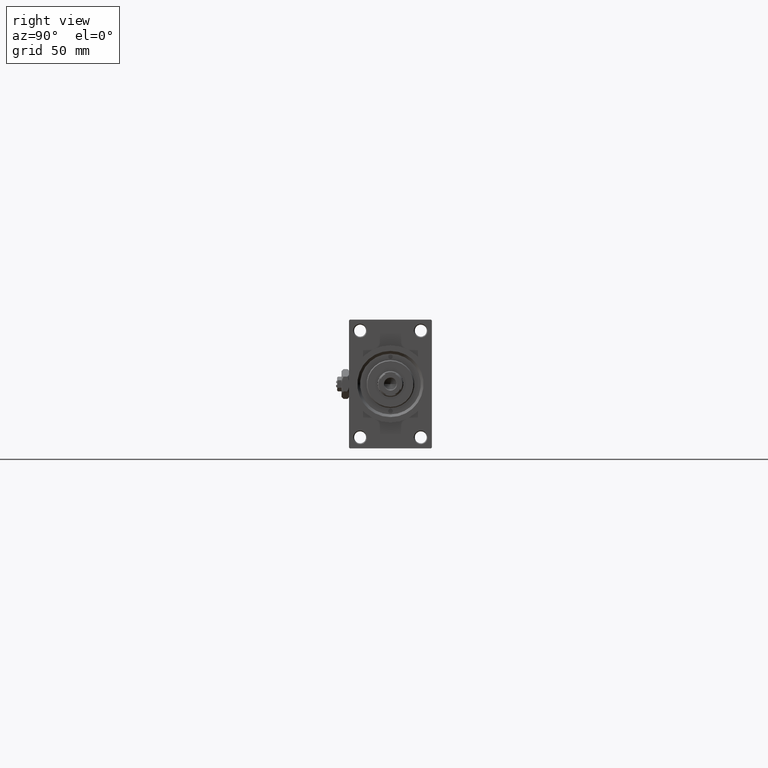
[diagram: clean part render]
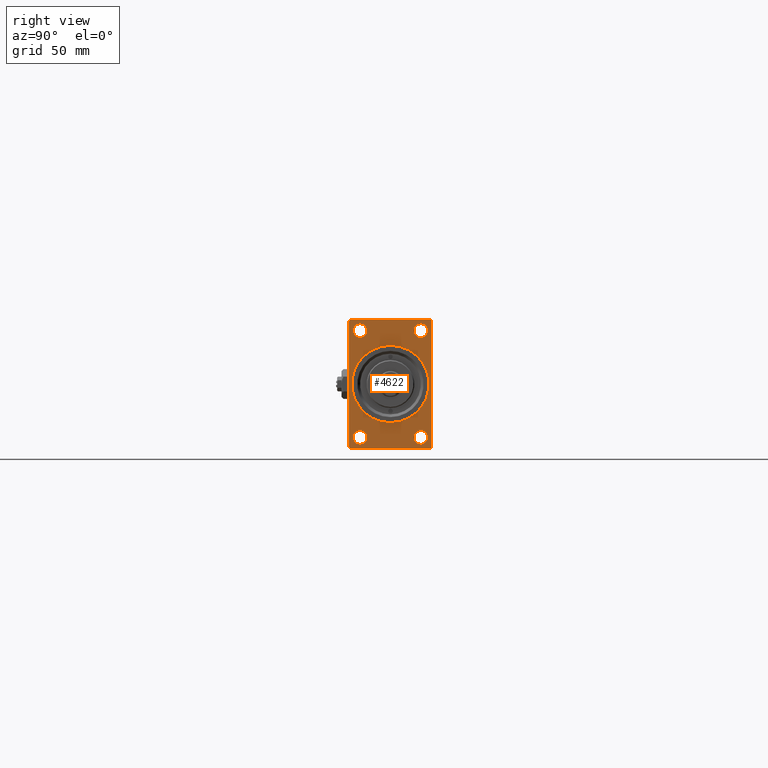
[diagram: same view with one face highlighted and labeled with its STEP entity id]
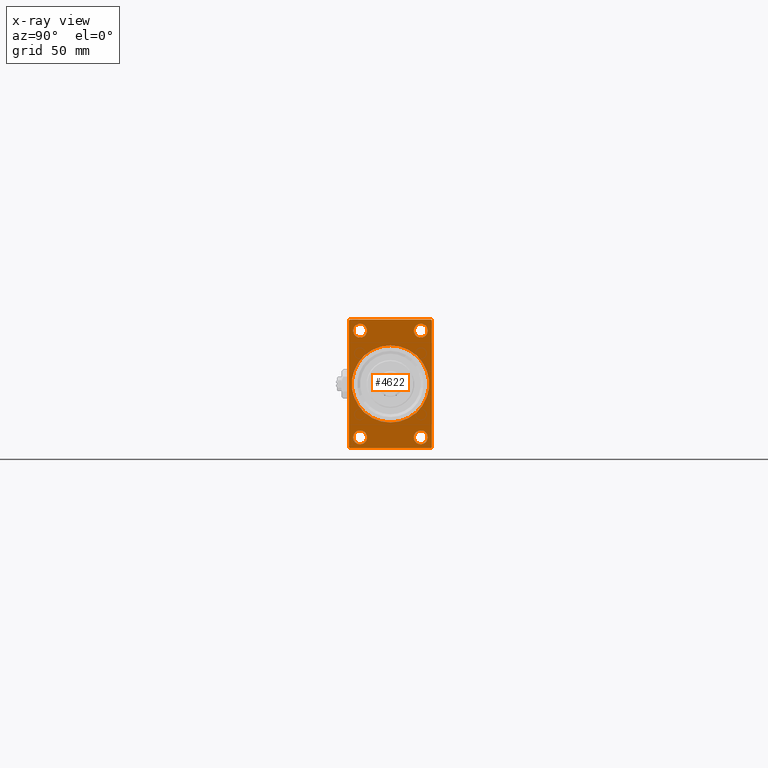
[diagram: x-ray of the same camera — body ghosted, the highlighted face saturated]
A machine part, right view. The second image highlights one B-rep face of the part: STEP entity #4622.
The next image is the same camera in x-ray: the body ghosted, the highlighted face saturated — about 0% of this face is hidden behind the body in this view.
In plain terms, the highlighted planar face has unit normal (-1, 0, 0).
Its self-contained STEP definition (entity closure, byte-faithful):
#205 = VERTEX_POINT ( 'NONE', #8558 ) ;
#581 = FACE_BOUND ( 'NONE', #11383, .T. ) ;
#661 = CARTESIAN_POINT ( 'NONE',  ( 343.0000000000000000, 22.49999999999999645, -34.49999999999995026 ) ) ;
#721 = DIRECTION ( 'NONE',  ( 0.000000000000000000, 0.7071067811865474617, -0.7071067811865474617 ) ) ;
#827 = FACE_BOUND ( 'NONE', #24219, .T. ) ;
#882 = EDGE_CURVE ( 'NONE', #205, #5379, #10425, .T. ) ;
#908 = LINE ( 'NONE', #661, #13055 ) ;
#1188 = AXIS2_PLACEMENT_3D ( 'NONE', #44933, #44183, #36693 ) ;
#1335 = DIRECTION ( 'NONE',  ( 0.000000000000000000, -1.000000000000000000, 0.000000000000000000 ) ) ;
#1448 = VERTEX_POINT ( 'NONE', #9154 ) ;
#1663 = DIRECTION ( 'NONE',  ( 0.000000000000000000, 0.000000000000000000, 1.000000000000000000 ) ) ;
#1673 = CARTESIAN_POINT ( 'NONE',  ( 343.0000000000000000, -16.50000000000000000, -28.99999999999999289 ) ) ;
#1816 = AXIS2_PLACEMENT_3D ( 'NONE', #16022, #41953, #7796 ) ;
#2167 = ORIENTED_EDGE ( 'NONE', *, *, #40682, .T. ) ;
#3572 = VECTOR ( 'NONE', #1335, 1000.000000000000000 ) ;
#4204 = CARTESIAN_POINT ( 'NONE',  ( 343.0000000000000000, -22.00000000000000355, -35.00000000000000000 ) ) ;
#4228 = ORIENTED_EDGE ( 'NONE', *, *, #22083, .T. ) ;
#4308 = CARTESIAN_POINT ( 'NONE',  ( 343.0000000000000000, -22.50000000000000355, 34.49999999999995026 ) ) ;
#4450 = AXIS2_PLACEMENT_3D ( 'NONE', #19543, #31243, #12309 ) ;
#4532 = DIRECTION ( 'NONE',  ( -1.000000000000000000, -0.000000000000000000, -0.000000000000000000 ) ) ;
#4622 = ADVANCED_FACE ( 'NONE', ( #581, #827, #11777, #19508, #46438, #8038 ), #15773, .F. ) ;
#5064 = LINE ( 'NONE', #8065, #3572 ) ;
#5161 = CARTESIAN_POINT ( 'NONE',  ( 343.0000000000000000, -16.50000000000000000, -28.99999999999999289 ) ) ;
#5379 = VERTEX_POINT ( 'NONE', #21785 ) ;
#5805 = EDGE_CURVE ( 'NONE', #42049, #1448, #14490, .T. ) ;
#6171 = CIRCLE ( 'NONE', #11744, 21.00000000000000000 ) ;
#6242 = CIRCLE ( 'NONE', #30919, 3.750000000000027534 ) ;
#6644 = VERTEX_POINT ( 'NONE', #34284 ) ;
#7150 = VERTEX_POINT ( 'NONE', #21047 ) ;
#7334 = CARTESIAN_POINT ( 'NONE',  ( 343.0000000000000000, -22.50000000000000355, 34.49999999999995026 ) ) ;
#7465 = DIRECTION ( 'NONE',  ( 0.000000000000000000, 0.000000000000000000, -1.000000000000000000 ) ) ;
#7585 = AXIS2_PLACEMENT_3D ( 'NONE', #39927, #46941, #35702 ) ;
#7796 = DIRECTION ( 'NONE',  ( -0.000000000000000000, 0.000000000000000000, 1.000000000000000000 ) ) ;
#8038 = FACE_OUTER_BOUND ( 'NONE', #32968, .T. ) ;
#8065 = CARTESIAN_POINT ( 'NONE',  ( 343.0000000000000000, 22.49999999999999645, 35.00000000000000000 ) ) ;
#8272 = CARTESIAN_POINT ( 'NONE',  ( 343.0000000000000000, -16.50000000000000000, -32.75000000000002842 ) ) ;
#8557 = EDGE_CURVE ( 'NONE', #33323, #7150, #36974, .T. ) ;
#8558 = CARTESIAN_POINT ( 'NONE',  ( 343.0000000000000000, -16.50000000000000000, 25.24999999999998224 ) ) ;
#8746 = DIRECTION ( 'NONE',  ( 0.000000000000000000, 0.000000000000000000, 1.000000000000000000 ) ) ;
#8893 = AXIS2_PLACEMENT_3D ( 'NONE', #17619, #44552, #40300 ) ;
#9154 = CARTESIAN_POINT ( 'NONE',  ( 343.0000000000000000, 21.99999999999999645, 35.00000000000000000 ) ) ;
#9462 = CARTESIAN_POINT ( 'NONE',  ( 343.0000000000000000, 22.49999999999999645, 35.00000000000000000 ) ) ;
#10006 = DIRECTION ( 'NONE',  ( 0.000000000000000000, -1.000000000000000000, 0.000000000000000000 ) ) ;
#10068 = EDGE_CURVE ( 'NONE', #7150, #33323, #30663, .T. ) ;
#10206 = ORIENTED_EDGE ( 'NONE', *, *, #25471, .T. ) ;
#10425 = CIRCLE ( 'NONE', #43871, 3.750000000000027534 ) ;
#10766 = EDGE_CURVE ( 'NONE', #46947, #25551, #908, .T. ) ;
#11151 = CARTESIAN_POINT ( 'NONE',  ( 343.0000000000000000, 2.571758278209441661E-15, -21.00000000000000000 ) ) ;
#11383 = EDGE_LOOP ( 'NONE', ( #35289, #41906 ) ) ;
#11744 = AXIS2_PLACEMENT_3D ( 'NONE', #45656, #19700, #26679 ) ;
#11777 = FACE_BOUND ( 'NONE', #44870, .T. ) ;
#12309 = DIRECTION ( 'NONE',  ( 0.000000000000000000, 0.000000000000000000, 1.000000000000000000 ) ) ;
#12876 = ORIENTED_EDGE ( 'NONE', *, *, #43783, .T. ) ;
#13055 = VECTOR ( 'NONE', #15858, 1000.000000000000114 ) ;
#13575 = ORIENTED_EDGE ( 'NONE', *, *, #24412, .T. ) ;
#13661 = VERTEX_POINT ( 'NONE', #34315 ) ;
#14128 = VERTEX_POINT ( 'NONE', #28991 ) ;
#14249 = CARTESIAN_POINT ( 'NONE',  ( 343.0000000000000000, 22.49999999999999645, -35.00000000000000000 ) ) ;
#14326 = VERTEX_POINT ( 'NONE', #8272 ) ;
#14490 = LINE ( 'NONE', #17982, #32909 ) ;
#14808 = LINE ( 'NONE', #7334, #39646 ) ;
#15247 = VERTEX_POINT ( 'NONE', #4308 ) ;
#15493 = ORIENTED_EDGE ( 'NONE', *, *, #18968, .F. ) ;
#15773 = PLANE ( 'NONE',  #1816 ) ;
#15858 = DIRECTION ( 'NONE',  ( -0.000000000000000000, 0.7071067811865474617, 0.7071067811865474617 ) ) ;
#16022 = CARTESIAN_POINT ( 'NONE',  ( 343.0000000000000000, 0.000000000000000000, 0.000000000000000000 ) ) ;
#16066 = DIRECTION ( 'NONE',  ( 0.000000000000000000, 0.000000000000000000, 1.000000000000000000 ) ) ;
#16947 = EDGE_CURVE ( 'NONE', #6644, #15247, #14808, .T. ) ;
#17619 = CARTESIAN_POINT ( 'NONE',  ( 343.0000000000000000, 16.50000000000000000, -28.99999999999999289 ) ) ;
#17757 = AXIS2_PLACEMENT_3D ( 'NONE', #22663, #42349, #7465 ) ;
#17982 = CARTESIAN_POINT ( 'NONE',  ( 343.0000000000000000, 21.99999999999999645, 35.00000000000000000 ) ) ;
#18367 = CARTESIAN_POINT ( 'NONE',  ( 343.0000000000000000, 16.50000000000000000, 25.24999999999997513 ) ) ;
#18451 = VERTEX_POINT ( 'NONE', #33266 ) ;
#18912 = ORIENTED_EDGE ( 'NONE', *, *, #29737, .F. ) ;
#18968 = EDGE_CURVE ( 'NONE', #42049, #25551, #20698, .T. ) ;
#19420 = VERTEX_POINT ( 'NONE', #11151 ) ;
#19508 = FACE_BOUND ( 'NONE', #29573, .T. ) ;
#19543 = CARTESIAN_POINT ( 'NONE',  ( 343.0000000000000000, 16.50000000000000000, -28.99999999999999289 ) ) ;
#19566 = CIRCLE ( 'NONE', #4450, 3.750000000000034639 ) ;
#19700 = DIRECTION ( 'NONE',  ( 1.000000000000000000, 0.000000000000000000, 0.000000000000000000 ) ) ;
#20308 = ORIENTED_EDGE ( 'NONE', *, *, #31066, .F. ) ;
#20698 = LINE ( 'NONE', #9462, #25402 ) ;
#21047 = CARTESIAN_POINT ( 'NONE',  ( 343.0000000000000000, 16.50000000000000000, 32.75000000000003553 ) ) ;
#21647 = VECTOR ( 'NONE', #29916, 1000.000000000000000 ) ;
#21652 = CIRCLE ( 'NONE', #8893, 3.750000000000034639 ) ;
#21696 = LINE ( 'NONE', #36898, #21647 ) ;
#21785 = CARTESIAN_POINT ( 'NONE',  ( 343.0000000000000000, -16.50000000000000000, 32.75000000000003553 ) ) ;
#22083 = EDGE_CURVE ( 'NONE', #14326, #14128, #31099, .T. ) ;
#22377 = CARTESIAN_POINT ( 'NONE',  ( 343.0000000000000000, -21.99999999999998934, -35.00000000000000000 ) ) ;
#22663 = CARTESIAN_POINT ( 'NONE',  ( 343.0000000000000000, 0.000000000000000000, 0.000000000000000000 ) ) ;
#23672 = VECTOR ( 'NONE', #721, 1000.000000000000114 ) ;
#24219 = EDGE_LOOP ( 'NONE', ( #4228, #13575 ) ) ;
#24412 = EDGE_CURVE ( 'NONE', #14128, #14326, #25579, .T. ) ;
#25402 = VECTOR ( 'NONE', #28659, 1000.000000000000000 ) ;
#25471 = EDGE_CURVE ( 'NONE', #35588, #13661, #21652, .T. ) ;
#25551 = VERTEX_POINT ( 'NONE', #47790 ) ;
#25579 = CIRCLE ( 'NONE', #32733, 3.750000000000034639 ) ;
#25803 = EDGE_LOOP ( 'NONE', ( #20308, #40798 ) ) ;
#25903 = VERTEX_POINT ( 'NONE', #29516 ) ;
#26679 = DIRECTION ( 'NONE',  ( 0.000000000000000000, 0.000000000000000000, -1.000000000000000000 ) ) ;
#27349 = ORIENTED_EDGE ( 'NONE', *, *, #16947, .T. ) ;
#28484 = ORIENTED_EDGE ( 'NONE', *, *, #38784, .T. ) ;
#28593 = EDGE_CURVE ( 'NONE', #15247, #18451, #21696, .T. ) ;
#28659 = DIRECTION ( 'NONE',  ( 0.000000000000000000, 0.000000000000000000, -1.000000000000000000 ) ) ;
#28991 = CARTESIAN_POINT ( 'NONE',  ( 343.0000000000000000, -16.50000000000000000, -25.24999999999996447 ) ) ;
#29073 = DIRECTION ( 'NONE',  ( -1.000000000000000000, -0.000000000000000000, -0.000000000000000000 ) ) ;
#29444 = DIRECTION ( 'NONE',  ( 0.000000000000000000, -0.7071067811865474617, 0.7071067811865474617 ) ) ;
#29516 = CARTESIAN_POINT ( 'NONE',  ( 343.0000000000000000, 0.000000000000000000, 21.00000000000000000 ) ) ;
#29573 = EDGE_LOOP ( 'NONE', ( #32065, #35376 ) ) ;
#29737 = EDGE_CURVE ( 'NONE', #46947, #46436, #37427, .T. ) ;
#29916 = DIRECTION ( 'NONE',  ( 0.000000000000000000, 0.000000000000000000, -1.000000000000000000 ) ) ;
#30663 = CIRCLE ( 'NONE', #7585, 3.750000000000031086 ) ;
#30714 = CARTESIAN_POINT ( 'NONE',  ( 343.0000000000000000, 16.50000000000000000, -25.24999999999996447 ) ) ;
#30919 = AXIS2_PLACEMENT_3D ( 'NONE', #42908, #4532, #8746 ) ;
#31066 = EDGE_CURVE ( 'NONE', #25903, #19420, #44025, .T. ) ;
#31099 = CIRCLE ( 'NONE', #47035, 3.750000000000034639 ) ;
#31243 = DIRECTION ( 'NONE',  ( -1.000000000000000000, -0.000000000000000000, -0.000000000000000000 ) ) ;
#31253 = DIRECTION ( 'NONE',  ( -1.000000000000000000, -0.000000000000000000, -0.000000000000000000 ) ) ;
#32065 = ORIENTED_EDGE ( 'NONE', *, *, #8557, .T. ) ;
#32733 = AXIS2_PLACEMENT_3D ( 'NONE', #1673, #29073, #47293 ) ;
#32909 = VECTOR ( 'NONE', #29444, 1000.000000000000114 ) ;
#32968 = EDGE_LOOP ( 'NONE', ( #42542, #12876, #18912, #44023, #15493, #35192, #28484, #27349 ) ) ;
#33266 = CARTESIAN_POINT ( 'NONE',  ( 343.0000000000000000, -22.50000000000000355, -34.50000000000000000 ) ) ;
#33323 = VERTEX_POINT ( 'NONE', #18367 ) ;
#34284 = CARTESIAN_POINT ( 'NONE',  ( 343.0000000000000000, -21.99999999999993250, 35.00000000000000000 ) ) ;
#34315 = CARTESIAN_POINT ( 'NONE',  ( 343.0000000000000000, 16.50000000000000000, -32.75000000000002842 ) ) ;
#35093 = LINE ( 'NONE', #4204, #23672 ) ;
#35192 = ORIENTED_EDGE ( 'NONE', *, *, #5805, .T. ) ;
#35289 = ORIENTED_EDGE ( 'NONE', *, *, #882, .T. ) ;
#35376 = ORIENTED_EDGE ( 'NONE', *, *, #10068, .T. ) ;
#35430 = CARTESIAN_POINT ( 'NONE',  ( 343.0000000000000000, 22.49999999999999645, 34.50000000000000000 ) ) ;
#35588 = VERTEX_POINT ( 'NONE', #30714 ) ;
#35702 = DIRECTION ( 'NONE',  ( 0.000000000000000000, 0.000000000000000000, 1.000000000000000000 ) ) ;
#35800 = DIRECTION ( 'NONE',  ( -1.000000000000000000, -0.000000000000000000, -0.000000000000000000 ) ) ;
#36693 = DIRECTION ( 'NONE',  ( 0.000000000000000000, 0.000000000000000000, 1.000000000000000000 ) ) ;
#36898 = CARTESIAN_POINT ( 'NONE',  ( 343.0000000000000000, -22.50000000000000355, 35.00000000000000000 ) ) ;
#36974 = CIRCLE ( 'NONE', #1188, 3.750000000000031086 ) ;
#37427 = LINE ( 'NONE', #14249, #40789 ) ;
#38784 = EDGE_CURVE ( 'NONE', #1448, #6644, #5064, .T. ) ;
#39646 = VECTOR ( 'NONE', #48961, 1000.000000000000114 ) ;
#39927 = CARTESIAN_POINT ( 'NONE',  ( 343.0000000000000000, 16.50000000000000000, 29.00000000000000355 ) ) ;
#40300 = DIRECTION ( 'NONE',  ( 0.000000000000000000, 0.000000000000000000, 1.000000000000000000 ) ) ;
#40682 = EDGE_CURVE ( 'NONE', #13661, #35588, #19566, .T. ) ;
#40789 = VECTOR ( 'NONE', #10006, 1000.000000000000000 ) ;
#40798 = ORIENTED_EDGE ( 'NONE', *, *, #43409, .F. ) ;
#41906 = ORIENTED_EDGE ( 'NONE', *, *, #45837, .T. ) ;
#41953 = DIRECTION ( 'NONE',  ( -1.000000000000000000, 0.000000000000000000, -0.000000000000000000 ) ) ;
#42049 = VERTEX_POINT ( 'NONE', #35430 ) ;
#42349 = DIRECTION ( 'NONE',  ( 1.000000000000000000, 0.000000000000000000, 0.000000000000000000 ) ) ;
#42542 = ORIENTED_EDGE ( 'NONE', *, *, #28593, .T. ) ;
#42908 = CARTESIAN_POINT ( 'NONE',  ( 343.0000000000000000, -16.50000000000000000, 29.00000000000000711 ) ) ;
#43409 = EDGE_CURVE ( 'NONE', #19420, #25903, #6171, .T. ) ;
#43783 = EDGE_CURVE ( 'NONE', #18451, #46436, #35093, .T. ) ;
#43871 = AXIS2_PLACEMENT_3D ( 'NONE', #45998, #31253, #16066 ) ;
#44023 = ORIENTED_EDGE ( 'NONE', *, *, #10766, .T. ) ;
#44025 = CIRCLE ( 'NONE', #17757, 21.00000000000000000 ) ;
#44183 = DIRECTION ( 'NONE',  ( -1.000000000000000000, -0.000000000000000000, -0.000000000000000000 ) ) ;
#44552 = DIRECTION ( 'NONE',  ( -1.000000000000000000, -0.000000000000000000, -0.000000000000000000 ) ) ;
#44870 = EDGE_LOOP ( 'NONE', ( #2167, #10206 ) ) ;
#44933 = CARTESIAN_POINT ( 'NONE',  ( 343.0000000000000000, 16.50000000000000000, 29.00000000000000355 ) ) ;
#45656 = CARTESIAN_POINT ( 'NONE',  ( 343.0000000000000000, 0.000000000000000000, 0.000000000000000000 ) ) ;
#45837 = EDGE_CURVE ( 'NONE', #5379, #205, #6242, .T. ) ;
#45998 = CARTESIAN_POINT ( 'NONE',  ( 343.0000000000000000, -16.50000000000000000, 29.00000000000000711 ) ) ;
#46436 = VERTEX_POINT ( 'NONE', #22377 ) ;
#46438 = FACE_BOUND ( 'NONE', #25803, .T. ) ;
#46941 = DIRECTION ( 'NONE',  ( -1.000000000000000000, -0.000000000000000000, -0.000000000000000000 ) ) ;
#46947 = VERTEX_POINT ( 'NONE', #46972 ) ;
#46972 = CARTESIAN_POINT ( 'NONE',  ( 343.0000000000000000, 21.99999999999993960, -35.00000000000000000 ) ) ;
#47035 = AXIS2_PLACEMENT_3D ( 'NONE', #5161, #35800, #1663 ) ;
#47293 = DIRECTION ( 'NONE',  ( 0.000000000000000000, 0.000000000000000000, 1.000000000000000000 ) ) ;
#47790 = CARTESIAN_POINT ( 'NONE',  ( 343.0000000000000000, 22.49999999999999645, -34.49999999999995026 ) ) ;
#48961 = DIRECTION ( 'NONE',  ( -0.000000000000000000, -0.7071067811865474617, -0.7071067811865474617 ) ) ;